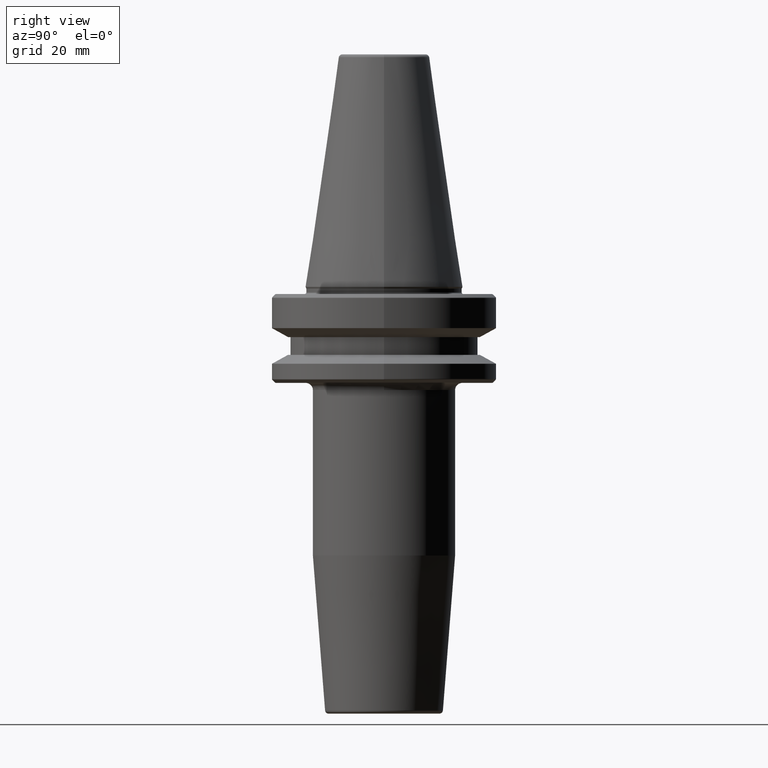
[diagram: clean part render]
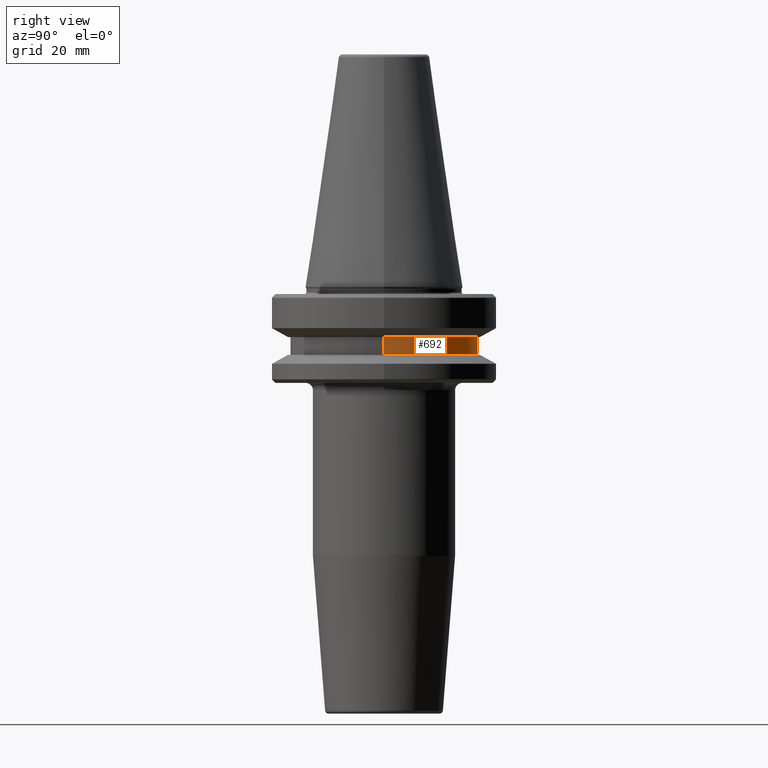
[diagram: same view with one face highlighted and labeled with its STEP entity id]
A machine part, right view. The second image highlights one B-rep face of the part: STEP entity #692.
In plain terms, the highlighted cylindrical surface (partial cylindrical patch) has radius 26.5 mm, axis along (-0, -0, 1).
Its self-contained STEP definition (entity closure, byte-faithful):
#43 = VECTOR ( 'NONE', #1223, 1000.000000000000000 ) ;
#44 = VERTEX_POINT ( 'NONE', #479 ) ;
#109 = FACE_OUTER_BOUND ( 'NONE', #442, .T. ) ;
#141 = DIRECTION ( 'NONE',  ( 1.000000000000000000, 0.0000000000000000000, 0.0000000000000000000 ) ) ;
#155 = ORIENTED_EDGE ( 'NONE', *, *, #780, .T. ) ;
#160 = VECTOR ( 'NONE', #488, 1000.000000000000000 ) ;
#203 = VERTEX_POINT ( 'NONE', #412 ) ;
#272 = CARTESIAN_POINT ( 'NONE',  ( 26.50000000000000000, 0.0000000000000000000, -14.10000000000000100 ) ) ;
#337 = CARTESIAN_POINT ( 'NONE',  ( 0.0000000000000000000, 0.0000000000000000000, -14.10000000000000100 ) ) ;
#412 = CARTESIAN_POINT ( 'NONE',  ( 26.50000000000000000, 0.0000000000000000000, -19.10000000000000500 ) ) ;
#442 = EDGE_LOOP ( 'NONE', ( #1034, #155, #632, #1153 ) ) ;
#479 = CARTESIAN_POINT ( 'NONE',  ( -26.50000000000000000, 3.245314017740485800E-015, -14.10000000000000100 ) ) ;
#488 = DIRECTION ( 'NONE',  ( -0.0000000000000000000, -0.0000000000000000000, 1.000000000000000000 ) ) ;
#501 = CARTESIAN_POINT ( 'NONE',  ( 0.0000000000000000000, 0.0000000000000000000, -19.10000000000000500 ) ) ;
#510 = AXIS2_PLACEMENT_3D ( 'NONE', #1219, #1042, #141 ) ;
#517 = EDGE_CURVE ( 'NONE', #1178, #44, #819, .T. ) ;
#591 = AXIS2_PLACEMENT_3D ( 'NONE', #501, #1104, #717 ) ;
#594 = LINE ( 'NONE', #725, #43 ) ;
#604 = AXIS2_PLACEMENT_3D ( 'NONE', #337, #1257, #1169 ) ;
#632 = ORIENTED_EDGE ( 'NONE', *, *, #517, .F. ) ;
#680 = CARTESIAN_POINT ( 'NONE',  ( -26.50000000000000000, 3.245314017740485800E-015, -19.10000000000000500 ) ) ;
#692 = ADVANCED_FACE ( 'NONE', ( #109 ), #1156, .T. ) ;
#717 = DIRECTION ( 'NONE',  ( 1.000000000000000000, 0.0000000000000000000, 0.0000000000000000000 ) ) ;
#725 = CARTESIAN_POINT ( 'NONE',  ( -26.50000000000000000, 3.245314017740485800E-015, 69.75694866325665100 ) ) ;
#780 = EDGE_CURVE ( 'NONE', #1263, #44, #594, .T. ) ;
#819 = CIRCLE ( 'NONE', #604, 26.50000000000000000 ) ;
#913 = CARTESIAN_POINT ( 'NONE',  ( 26.50000000000000000, 0.0000000000000000000, 69.75694866325665100 ) ) ;
#948 = EDGE_CURVE ( 'NONE', #203, #1178, #957, .T. ) ;
#957 = LINE ( 'NONE', #913, #160 ) ;
#1034 = ORIENTED_EDGE ( 'NONE', *, *, #1070, .T. ) ;
#1042 = DIRECTION ( 'NONE',  ( -0.0000000000000000000, -0.0000000000000000000, 1.000000000000000000 ) ) ;
#1070 = EDGE_CURVE ( 'NONE', #203, #1263, #1095, .T. ) ;
#1095 = CIRCLE ( 'NONE', #591, 26.50000000000000000 ) ;
#1104 = DIRECTION ( 'NONE',  ( -0.0000000000000000000, -0.0000000000000000000, 1.000000000000000000 ) ) ;
#1153 = ORIENTED_EDGE ( 'NONE', *, *, #948, .F. ) ;
#1156 = CYLINDRICAL_SURFACE ( 'NONE', #510, 26.50000000000000000 ) ;
#1169 = DIRECTION ( 'NONE',  ( 1.000000000000000000, 0.0000000000000000000, 0.0000000000000000000 ) ) ;
#1178 = VERTEX_POINT ( 'NONE', #272 ) ;
#1219 = CARTESIAN_POINT ( 'NONE',  ( 0.0000000000000000000, 0.0000000000000000000, 69.75694866325665100 ) ) ;
#1223 = DIRECTION ( 'NONE',  ( -0.0000000000000000000, -0.0000000000000000000, 1.000000000000000000 ) ) ;
#1257 = DIRECTION ( 'NONE',  ( -0.0000000000000000000, -0.0000000000000000000, 1.000000000000000000 ) ) ;
#1263 = VERTEX_POINT ( 'NONE', #680 ) ;